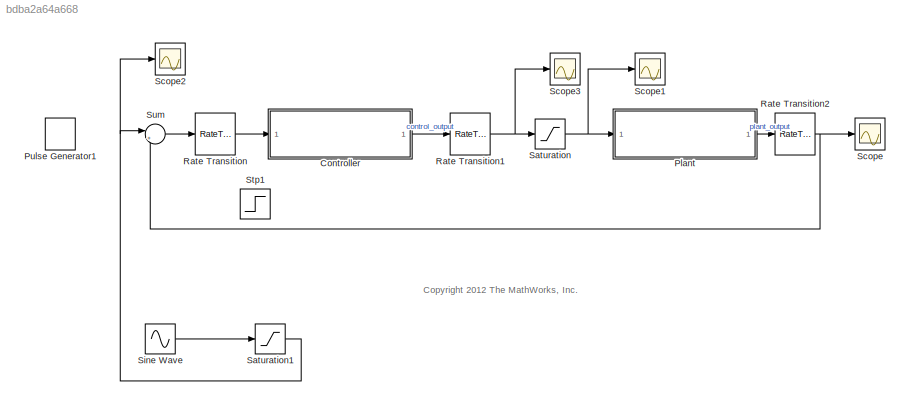
MODEL slx_bdba2a64a668
KIND model
BLOCK [ModelReference] Controller
  CopyOfModelName = feedback_control
  DefaultDataLogging = on
  ModelNameDialog = feedback_control
  ModelReferenceVersion = 1.59
  Ports = [1, 1]
BLOCK [ModelReference] Plant
  CopyOfModelName = feedback_plant
  DefaultDataLogging = on
  ModelNameDialog = feedback_plant
  ModelReferenceVersion = 1.26
  Ports = [1, 1]
BLOCK [DiscretePulseGenerator] Pulse Generator1
  Period = 4000
  Ports = [0, 1]
  PulseWidth = 2000
  SampleTime = 0.001
BLOCK [RateTransition] Rate Transition
BLOCK [RateTransition] Rate Transition1
  OutPortSampleTime = 0.001
BLOCK [RateTransition] Rate Transition2
BLOCK [Saturate] Saturation
  InputPortMap = u0
  LowerLimit = -10
  Ports = [1, 1]
  UpperLimit = 10
BLOCK [Saturate] Saturation1
  InputPortMap = u0
  LowerLimit = -1
  Ports = [1, 1]
  UpperLimit = 1
BLOCK [Scope] Scope
  DataFormat = StructureWithTime
  Floating = off
  LimitDataPoints = off
  NumInputPorts = 1
  Ports = [1]
  SampleTime = 0
  SaveToWorkspace = on
  ShowLegends = off
  YMax = 1.4
  YMin = 0
BLOCK [Scope] Scope1
  DataFormat = StructureWithTime
  Floating = off
  LimitDataPoints = off
  NumInputPorts = 1
  Ports = [1]
  SampleTime = 0
  SaveName = ScopeData1
  SaveToWorkspace = on
  ShowLegends = off
  YMax = 1.4
  YMin = 0
BLOCK [Scope] Scope2
  DataFormat = StructureWithTime
  Floating = off
  LimitDataPoints = off
  NumInputPorts = 1
  Ports = [1]
  SampleTime = 0
  SaveName = ScopeData2
  SaveToWorkspace = on
  ShowLegends = off
  YMax = 1.4
  YMin = 0
BLOCK [Scope] Scope3
  DataFormat = StructureWithTime
  Floating = off
  LimitDataPoints = off
  NumInputPorts = 1
  Ports = [1]
  SampleTime = 0
  SaveName = ScopeData3
  SaveToWorkspace = on
  ShowLegends = off
BLOCK [Sin] Sine Wave
  Amplitude = 10
  Frequency = 1.5708
  Ports = [0, 1]
  SampleTime = 0.001
BLOCK [Step] Stp1
  IOType = siggen
  SampleTime = 0
  Time = 4
BLOCK [Sum] Sum
  IconShape = round
  InputSameDT = off
  Inputs = |+-
  OutDataTypeStr = Inherit: Inherit via internal rule
  Ports = [2, 1]
  SaturateOnIntegerOverflow = off
ANNOTATION (root): <copyright redacted>
LINE Controller:1 -> Rate Transition1:1
LINE Plant:1 -> Rate Transition2:1
NET Rate Transition1:1 -> Saturation:1, Scope3:1
NET Rate Transition2:1 -> Scope:1, Sum:2
LINE Rate Transition:1 -> Controller:1
NET Saturation1:1 -> Scope2:1, Sum:1
NET Saturation:1 -> Plant:1, Scope1:1
LINE Sine Wave:1 -> Saturation1:1
LINE Sum:1 -> Rate Transition:1
note: NET lines group one-source signal fan-out (src -> all destinations, sorted); 1:1 wires keep LINE
